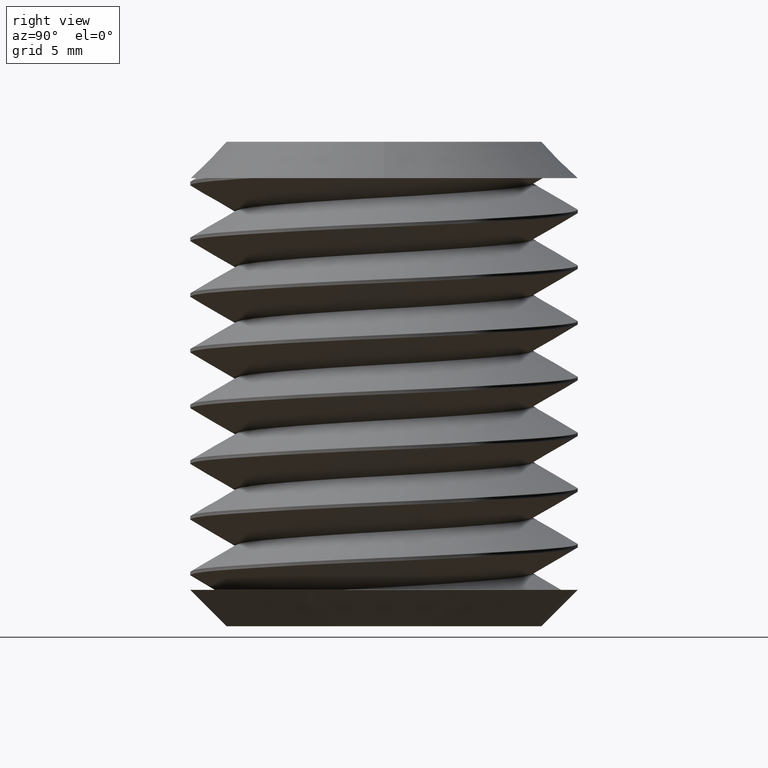
[diagram: clean part render]
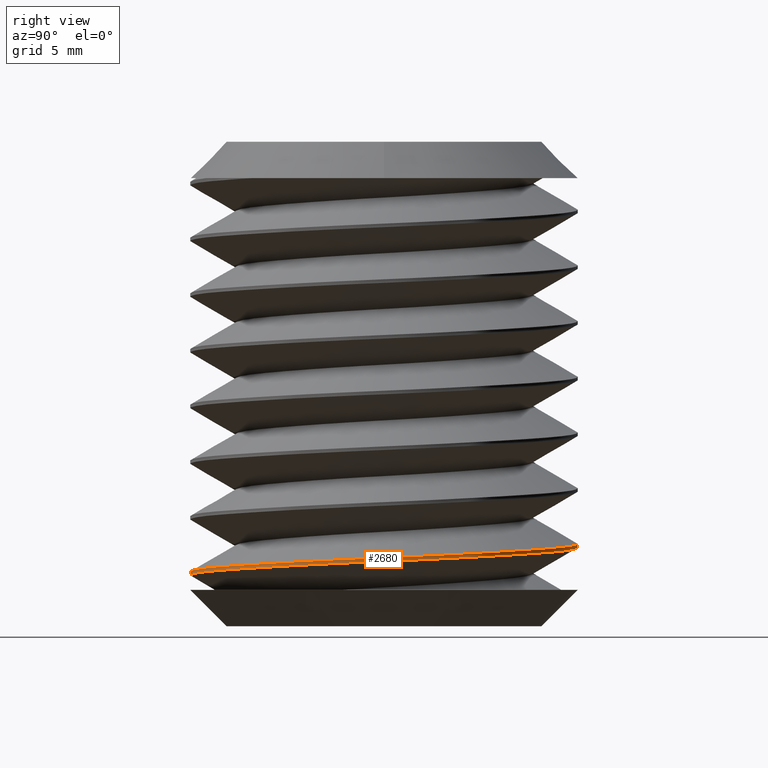
[diagram: same view with one face highlighted and labeled with its STEP entity id]
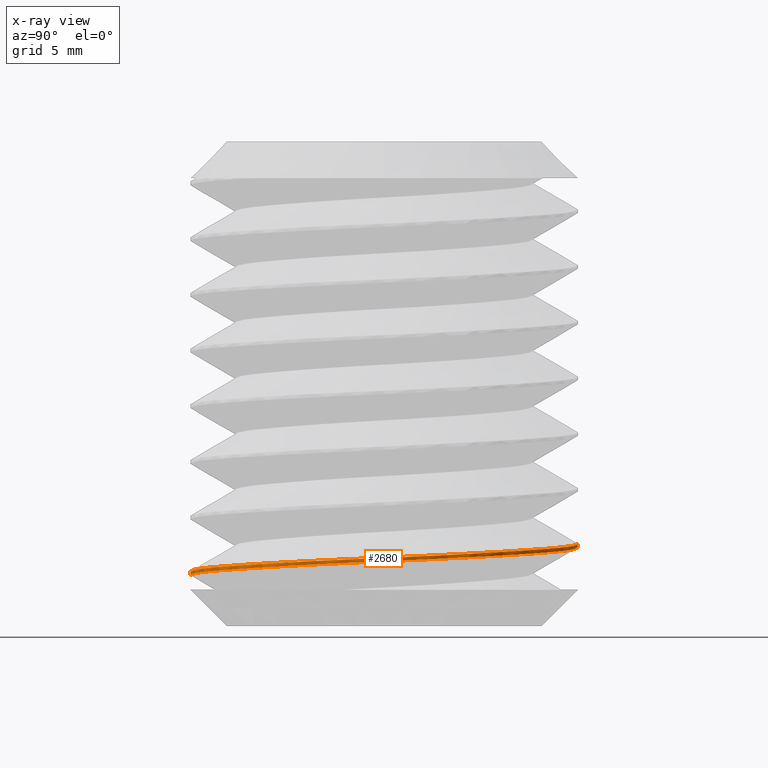
[diagram: x-ray of the same camera — body ghosted, the highlighted face saturated]
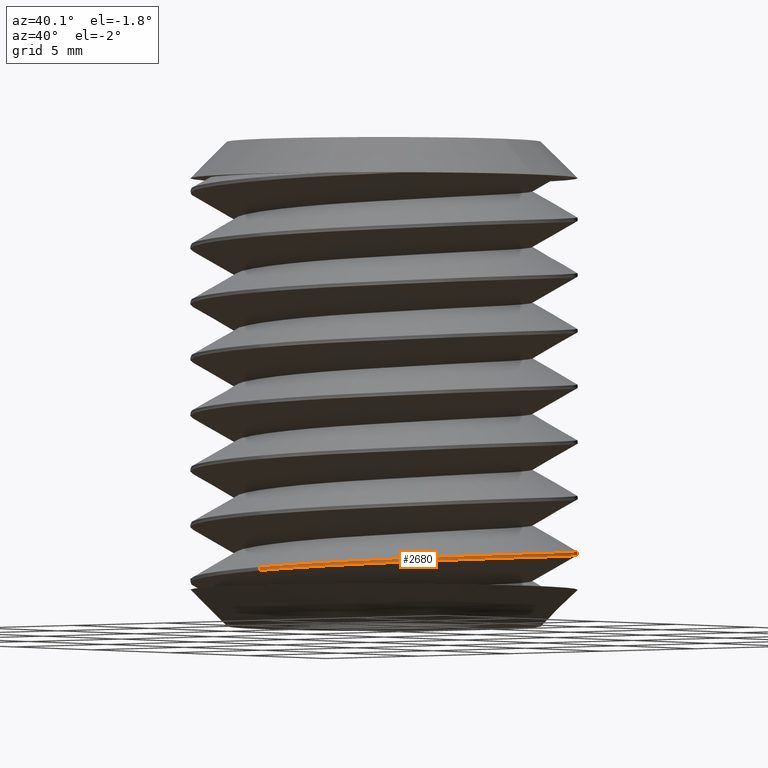
[diagram: same view with one face highlighted and labeled with its STEP entity id]
A machine part, right view. The second image highlights one B-rep face of the part: STEP entity #2680.
The next image is the same camera in x-ray: the body ghosted, the highlighted face saturated — about 0% of this face is hidden behind the body in this view.
A second angle (auxiliary view) of the same face is appended — the face is thin or edge-on in the first view.
In plain terms, the highlighted cylindrical surface (partial cylindrical patch) has radius 8 mm, axis along (0, -0, 1).
Its self-contained STEP definition (entity closure, byte-faithful):
#295 = CARTESIAN_POINT ( 'NONE',  ( 5.275290794601348300, -6.019945547329391500, -17.49280997892573100 ) ) ;
#296 = CARTESIAN_POINT ( 'NONE',  ( 5.471347609031093700, -5.842397323720178700, -17.48074505675932100 ) ) ;
#297 = CARTESIAN_POINT ( 'NONE',  ( 6.029531319406561200, -5.284104148911813700, -17.44420438514223900 ) ) ;
#298 = CARTESIAN_POINT ( 'NONE',  ( 6.359980614583778700, -4.880840585326987800, -17.41955312221965700 ) ) ;
#299 = CARTESIAN_POINT ( 'NONE',  ( 6.794845245070773900, -4.230610789809579900, -17.38215187164854900 ) ) ;
#300 = CARTESIAN_POINT ( 'NONE',  ( 6.929592255609529500, -4.006257374348807700, -17.36961355279825300 ) ) ;
#301 = CARTESIAN_POINT ( 'NONE',  ( 7.178056058276732500, -3.541872132469556800, -17.34439015627039600 ) ) ;
#302 = CARTESIAN_POINT ( 'NONE',  ( 7.290949748655979300, -3.303090583883325300, -17.33177668158152700 ) ) ;
#303 = CARTESIAN_POINT ( 'NONE',  ( 7.591114006585903500, -2.578451223133057600, -17.29451484996088700 ) ) ;
#304 = CARTESIAN_POINT ( 'NONE',  ( 7.742576973383020100, -2.080113070392248800, -17.27020648614303200 ) ) ;
#305 = CARTESIAN_POINT ( 'NONE',  ( 7.896422589939016100, -1.309619190717374900, -17.23454737802104100 ) ) ;
#306 = CARTESIAN_POINT ( 'NONE',  ( 7.935456899591361700, -1.047893127319951900, -17.22275132130720000 ) ) ;
#307 = CARTESIAN_POINT ( 'NONE',  ( 7.987243411170614300, -0.5229712250861698900, -17.19972789203060200 ) ) ;
#308 = CARTESIAN_POINT ( 'NONE',  ( 8.000150963983331900, -0.2595912878573122300, -17.18849639161390300 ) ) ;
#309 = CARTESIAN_POINT ( 'NONE',  ( 7.999694084844327900, 0.5330167745257977700, -17.15559454879980800 ) ) ;
#310 = CARTESIAN_POINT ( 'NONE',  ( 7.947552778615135900, 1.053396490352676700, -17.13275110666895900 ) ) ;
#311 = CARTESIAN_POINT ( 'NONE',  ( 7.742905846500322700, 2.078616940898823500, -17.08530448244416200 ) ) ;
#312 = CARTESIAN_POINT ( 'NONE',  ( 7.587871611042333900, 2.587898346271656700, -17.06045644434453800 ) ) ;
#313 = CARTESIAN_POINT ( 'NONE',  ( 7.186796644346612700, 3.552881566996851900, -17.01080339912448700 ) ) ;
#314 = CARTESIAN_POINT ( 'NONE',  ( 6.941014121738183100, 4.012129252322748300, -16.98585743510726000 ) ) ;
#315 = CARTESIAN_POINT ( 'NONE',  ( 6.503783746079598400, 4.665780912999348800, -16.94825750801382100 ) ) ;
#316 = CARTESIAN_POINT ( 'NONE',  ( 6.345644109854384300, 4.878694722036256900, -16.93563345079713000 ) ) ;
#317 = CARTESIAN_POINT ( 'NONE',  ( 6.012287449644653700, 5.284057246340115200, -16.91082543164543500 ) ) ;
#318 = CARTESIAN_POINT ( 'NONE',  ( 5.836674999571537900, 5.477324925974810900, -16.89859801135460800 ) ) ;
#319 = CARTESIAN_POINT ( 'NONE',  ( 5.283615838386785900, 6.029498922270563300, -16.86243404337227900 ) ) ;
#320 = CARTESIAN_POINT ( 'NONE',  ( 4.880011997122254600, 6.361178059964246700, -16.83900066205964700 ) ) ;
#321 = CARTESIAN_POINT ( 'NONE',  ( 4.001125067249541100, 6.947668788799232300, -16.79360636060161500 ) ) ;
#322 = CARTESIAN_POINT ( 'NONE',  ( 3.540151457441343300, 7.192973889914581400, -16.77235275975515100 ) ) ;
#323 = CARTESIAN_POINT ( 'NONE',  ( 2.817886017264417600, 7.491822530223196900, -16.73774420736823700 ) ) ;
#324 = CARTESIAN_POINT ( 'NONE',  ( 2.571951001900958400, 7.579840751960065700, -16.72595982120330400 ) ) ;
#325 = CARTESIAN_POINT ( 'NONE',  ( 2.069484248157835300, 7.732150588800018400, -16.70188328923519100 ) ) ;
#326 = CARTESIAN_POINT ( 'NONE',  ( 1.812201391697430000, 7.796448187130957700, -16.68955515235735000 ) ) ;
#327 = CARTESIAN_POINT ( 'NONE',  ( 1.041003023519533600, 7.949278305593155700, -16.65260189720839500 ) ) ;
#328 = CARTESIAN_POINT ( 'NONE',  ( 0.5226123003023523900, 8.000000000000000000, -16.62776234172949700 ) ) ;
#329 = CARTESIAN_POINT ( 'NONE',  ( 3.160760730523304000E-014, 8.000000000000000000, -16.60272050236230600 ) ) ;
#376 = CARTESIAN_POINT ( 'NONE',  ( 0.0000000000000000000, -8.000000000000000000, -18.50000000000000400 ) ) ;
#377 = DIRECTION ( 'NONE',  ( 0.0000000000000000000, -2.168404344971008900E-016, 1.000000000000000000 ) ) ;
#572 = CARTESIAN_POINT ( 'NONE',  ( 0.0000000000000000000, 8.000000000000000000, -16.74727949763769500 ) ) ;
#599 = CARTESIAN_POINT ( 'NONE',  ( 6.275039685598678600E-014, -8.000000000000000000, -17.89727949763769700 ) ) ;
#601 = CARTESIAN_POINT ( 'NONE',  ( 0.0000000000000000000, -8.000000000000000000, -17.75272050236230500 ) ) ;
#610 = CARTESIAN_POINT ( 'NONE',  ( 3.160760730523304000E-014, 8.000000000000000000, -16.60272050236230600 ) ) ;
#1522 = LINE ( 'NONE', #376, #1674 ) ;
#1524 = LINE ( 'NONE', #2074, #1525 ) ;
#1525 = VECTOR ( 'NONE', #2075, 1000.000000000000000 ) ;
#1537 = CYLINDRICAL_SURFACE ( 'NONE', #2646, 8.000000000000000000 ) ;
#1606 = EDGE_LOOP ( 'NONE', ( #1652, #1653, #1613, #1612 ) ) ;
#1612 = ORIENTED_EDGE ( 'NONE', *, *, #2753, .F. ) ;
#1613 = ORIENTED_EDGE ( 'NONE', *, *, #2751, .F. ) ;
#1652 = ORIENTED_EDGE ( 'NONE', *, *, #2748, .F. ) ;
#1653 = ORIENTED_EDGE ( 'NONE', *, *, #2749, .T. ) ;
#1674 = VECTOR ( 'NONE', #377, 1000.000000000000000 ) ;
#1684 = FACE_OUTER_BOUND ( 'NONE', #1606, .T. ) ;
#2028 = CARTESIAN_POINT ( 'NONE',  ( 0.0000000000000000000, 8.000000000000000000, -16.74727949763769500 ) ) ;
#2029 = CARTESIAN_POINT ( 'NONE',  ( 0.5226088002379268800, 8.000000000000005300, -16.77232116929347700 ) ) ;
#2030 = CARTESIAN_POINT ( 'NONE',  ( 1.052432807693356900, 7.947612275792697500, -16.79770856961417600 ) ) ;
#2031 = CARTESIAN_POINT ( 'NONE',  ( 2.075669171111284700, 7.743626617621634600, -16.84673864526381600 ) ) ;
#2032 = CARTESIAN_POINT ( 'NONE',  ( 2.574572175440427800, 7.592636507836341600, -16.87064441416025000 ) ) ;
#2033 = CARTESIAN_POINT ( 'NONE',  ( 3.303389996360870400, 7.290867732212216600, -16.90556693463713600 ) ) ;
#2034 = CARTESIAN_POINT ( 'NONE',  ( 3.542794317391507500, 7.177544593919406200, -16.91703839164731300 ) ) ;
#2035 = CARTESIAN_POINT ( 'NONE',  ( 4.004477851403886600, 6.930562394976251800, -16.93916072756992000 ) ) ;
#2036 = CARTESIAN_POINT ( 'NONE',  ( 4.228139451910293700, 6.796372243115753200, -16.94988260208016600 ) ) ;
#2037 = CARTESIAN_POINT ( 'NONE',  ( 4.661260924586763100, 6.506956699157837100, -16.97226936224952400 ) ) ;
#2038 = CARTESIAN_POINT ( 'NONE',  ( 4.870728819698384400, 6.351727176537988100, -16.98372943129667000 ) ) ;
#2039 = CARTESIAN_POINT ( 'NONE',  ( 5.275290794470107500, 6.019945547427366400, -17.00719002106706400 ) ) ;
#2040 = CARTESIAN_POINT ( 'NONE',  ( 5.471347608197417500, 5.842397324530235600, -17.01925494318710400 ) ) ;
#2041 = CARTESIAN_POINT ( 'NONE',  ( 6.029531319989935400, 5.284104148375871700, -17.05579561489399200 ) ) ;
#2042 = CARTESIAN_POINT ( 'NONE',  ( 6.359980615296253200, 4.880840584355271800, -17.08044687783773300 ) ) ;
#2043 = CARTESIAN_POINT ( 'NONE',  ( 6.794845245380252600, 4.230610789300028400, -17.11784812838001800 ) ) ;
#2044 = CARTESIAN_POINT ( 'NONE',  ( 6.929592255683086700, 4.006257374179537800, -17.13038644721053300 ) ) ;
#2045 = CARTESIAN_POINT ( 'NONE',  ( 7.178056057773306800, 3.541872133442266700, -17.15560984367718000 ) ) ;
#2046 = CARTESIAN_POINT ( 'NONE',  ( 7.290949748729248700, 3.303090583753458500, -17.16822331842563200 ) ) ;
#2047 = CARTESIAN_POINT ( 'NONE',  ( 7.591114007071589700, 2.578451221866487200, -17.20548515010331100 ) ) ;
#2048 = CARTESIAN_POINT ( 'NONE',  ( 7.742576973670128200, 2.080113069101110500, -17.22979351391743200 ) ) ;
#2049 = CARTESIAN_POINT ( 'NONE',  ( 7.896422589924348800, 1.309619190717469500, -17.26545262197860700 ) ) ;
#2050 = CARTESIAN_POINT ( 'NONE',  ( 7.935456899516765400, 1.047893127963440900, -17.27724867866430700 ) ) ;
#2051 = CARTESIAN_POINT ( 'NONE',  ( 7.987243411179344200, 0.5229712251103518800, -17.30027210796861700 ) ) ;
#2052 = CARTESIAN_POINT ( 'NONE',  ( 8.000150964002084900, 0.2595912866011606000, -17.31150360843777800 ) ) ;
#2053 = CARTESIAN_POINT ( 'NONE',  ( 7.999694084805797800, -0.5330167737830892000, -17.34440545117030700 ) ) ;
#2054 = CARTESIAN_POINT ( 'NONE',  ( 7.947552778794482200, -1.053396489208769300, -17.36724889327928500 ) ) ;
#2055 = CARTESIAN_POINT ( 'NONE',  ( 7.742905846608845600, -2.078616940600601200, -17.41469551754086400 ) ) ;
#2056 = CARTESIAN_POINT ( 'NONE',  ( 7.587871611002478600, -2.587898346253431300, -17.43954355565566800 ) ) ;
#2057 = CARTESIAN_POINT ( 'NONE',  ( 7.186796644901227700, -3.552881565776577800, -17.48919660081158500 ) ) ;
#2058 = CARTESIAN_POINT ( 'NONE',  ( 6.941014122378368800, -4.012129251352708300, -17.51414256483715100 ) ) ;
#2059 = CARTESIAN_POINT ( 'NONE',  ( 6.503783745851336600, -4.665780913347084900, -17.55174249200608800 ) ) ;
#2060 = CARTESIAN_POINT ( 'NONE',  ( 6.345644109466017600, -4.878694722512828500, -17.56436654923194900 ) ) ;
#2061 = CARTESIAN_POINT ( 'NONE',  ( 6.012287449926736500, -5.284057245992775300, -17.58917456833339100 ) ) ;
#2062 = CARTESIAN_POINT ( 'NONE',  ( 5.836675000085202600, -5.477324925422943900, -17.60140198861017400 ) ) ;
#2063 = CARTESIAN_POINT ( 'NONE',  ( 5.283615839160417800, -6.029498921576244900, -17.63756595658037100 ) ) ;
#2064 = CARTESIAN_POINT ( 'NONE',  ( 4.880011995009041900, -6.361178061462732500, -17.66099933805316600 ) ) ;
#2065 = CARTESIAN_POINT ( 'NONE',  ( 4.001125067512122200, -6.947668788535688500, -17.70639363938116500 ) ) ;
#2066 = CARTESIAN_POINT ( 'NONE',  ( 3.540151458265498700, -7.192973889529544500, -17.72764724020535700 ) ) ;
#2067 = CARTESIAN_POINT ( 'NONE',  ( 2.817886017718107100, -7.491822530057494800, -17.76225579261002700 ) ) ;
#2068 = CARTESIAN_POINT ( 'NONE',  ( 2.571951002028587800, -7.579840751936860200, -17.77404017879059200 ) ) ;
#2069 = CARTESIAN_POINT ( 'NONE',  ( 2.069484247165748400, -7.732150589085249800, -17.79811671081234100 ) ) ;
#2070 = CARTESIAN_POINT ( 'NONE',  ( 1.812201390956367700, -7.796448187287093200, -17.81044484767815900 ) ) ;
#2071 = CARTESIAN_POINT ( 'NONE',  ( 1.041003024184276300, -7.949278305442875100, -17.84739810275975500 ) ) ;
#2072 = CARTESIAN_POINT ( 'NONE',  ( 0.5226123010694052600, -8.000000000000003600, -17.87223765823374700 ) ) ;
#2073 = CARTESIAN_POINT ( 'NONE',  ( 6.275039685598678600E-014, -8.000000000000000000, -17.89727949763769700 ) ) ;
#2074 = CARTESIAN_POINT ( 'NONE',  ( 9.797174393178825700E-016, 8.000000000000000000, -18.49999999999999600 ) ) ;
#2075 = DIRECTION ( 'NONE',  ( 0.0000000000000000000, -2.168404344971008900E-016, 1.000000000000000000 ) ) ;
#2078 = CARTESIAN_POINT ( 'NONE',  ( 0.0000000000000000000, -8.000000000000000000, -17.75272050236230500 ) ) ;
#2079 = CARTESIAN_POINT ( 'NONE',  ( 0.5226088009229176200, -7.999999999999998200, -17.72767883067369600 ) ) ;
#2080 = CARTESIAN_POINT ( 'NONE',  ( 1.052432807873215000, -7.947612275734094600, -17.70229143037720500 ) ) ;
#2081 = CARTESIAN_POINT ( 'NONE',  ( 2.075669170260451500, -7.743626617813997200, -17.65326135477695100 ) ) ;
#2082 = CARTESIAN_POINT ( 'NONE',  ( 2.574572174921896800, -7.592636508093767700, -17.62935558586458700 ) ) ;
#2083 = CARTESIAN_POINT ( 'NONE',  ( 3.303389997452419500, -7.290867731738893000, -17.59443306531055400 ) ) ;
#2084 = CARTESIAN_POINT ( 'NONE',  ( 3.542794317756220700, -7.177544593722776000, -17.58296160833521400 ) ) ;
#2085 = CARTESIAN_POINT ( 'NONE',  ( 4.004477850966755300, -6.930562395211622700, -17.56083927245102700 ) ) ;
#2086 = CARTESIAN_POINT ( 'NONE',  ( 4.228139451285600500, -6.796372243503197900, -17.55011739795088100 ) ) ;
#2087 = CARTESIAN_POINT ( 'NONE',  ( 4.661260923938415100, -6.506956699621042600, -17.52773063778522600 ) ) ;
#2088 = CARTESIAN_POINT ( 'NONE',  ( 4.870728819214192200, -6.351727176925424900, -17.51627056873101700 ) ) ;
#2109 = B_SPLINE_CURVE_WITH_KNOTS ( 'NONE', 3,
 ( #2078, #2079, #2080, #2081, #2082, #2083, #2084, #2085, #2086, #2087, #2088, #295, #296, #297, #298, #299, #300, #301, #302, #303, #304, #305, #306, #307, #308, #309, #310, #311, #312, #313, #314, #315, #316, #317, #318, #319, #320, #321, #322, #323, #324, #325, #326, #327, #328, #329 ),
 .UNSPECIFIED., .F., .F.,
 ( 4, 2, 2, 2, 2, 2, 2, 2, 2, 2, 2, 2, 2, 2, 2, 2, 2, 2, 2, 2, 2, 2, 4 ),
 ( 0.01631663873644190500, 0.01788489356522336700, 0.01945314839400482900, 0.02023727580839555800, 0.02102140322278629000, 0.02180553063717702000, 0.02258965805156775200, 0.02415791288034921400, 0.02494204029473994600, 0.02572616770913067900, 0.02729442253791214100, 0.02807854995230287000, 0.02886267736669360200, 0.03043093219547507100, 0.03199918702425653300, 0.03356744185303799800, 0.03435156926742873000, 0.03513569668181945600, 0.03670395151060092100, 0.03827220633938238600, 0.03905633375377312600, 0.03984046116816385200, 0.04140871599694531000 ),
 .UNSPECIFIED. ) ;
#2110 = B_SPLINE_CURVE_WITH_KNOTS ( 'NONE', 3,
 ( #2028, #2029, #2030, #2031, #2032, #2033, #2034, #2035, #2036, #2037, #2038, #2039, #2040, #2041, #2042, #2043, #2044, #2045, #2046, #2047, #2048, #2049, #2050, #2051, #2052, #2053, #2054, #2055, #2056, #2057, #2058, #2059, #2060, #2061, #2062, #2063, #2064, #2065, #2066, #2067, #2068, #2069, #2070, #2071, #2072, #2073 ),
 .UNSPECIFIED., .F., .F.,
 ( 4, 2, 2, 2, 2, 2, 2, 2, 2, 2, 2, 2, 2, 2, 2, 2, 2, 2, 2, 2, 2, 2, 4 ),
 ( -0.03804518115373645800, -0.03645976958225746100, -0.03487435801077846300, -0.03408165222503896400, -0.03328894643929945800, -0.03249624065355995900, -0.03170353486782046000, -0.03011812329634146500, -0.02932541751060196300, -0.02853271172486246400, -0.02694730015338347000, -0.02615459436764397400, -0.02536188858190447500, -0.02377647701042547700, -0.02219106543894648300, -0.02060565386746748500, -0.01981294808172798900, -0.01902024229598849400, -0.01743483072450949600, -0.01584941915303050500, -0.01505671336729100900, -0.01426400758155151000, -0.01267859601007252000 ),
 .UNSPECIFIED. ) ;
#2349 = CARTESIAN_POINT ( 'NONE',  ( 0.0000000000000000000, 0.0000000000000000000, -18.50000000000000000 ) ) ;
#2350 = DIRECTION ( 'NONE',  ( 0.0000000000000000000, -2.168404344971008900E-016, 1.000000000000000000 ) ) ;
#2351 = DIRECTION ( 'NONE',  ( 0.0000000000000000000, -1.000000000000000000, -4.336808689942017700E-016 ) ) ;
#2646 = AXIS2_PLACEMENT_3D ( 'NONE', #2349, #2350, #2351 ) ;
#2680 = ADVANCED_FACE ( 'NONE', ( #1684 ), #1537, .T. ) ;
#2748 = EDGE_CURVE ( 'NONE', #2763, #2805, #2110, .T. ) ;
#2749 = EDGE_CURVE ( 'NONE', #2763, #2816, #1524, .T. ) ;
#2751 = EDGE_CURVE ( 'NONE', #2807, #2816, #2109, .T. ) ;
#2753 = EDGE_CURVE ( 'NONE', #2805, #2807, #1522, .T. ) ;
#2763 = VERTEX_POINT ( 'NONE', #572 ) ;
#2805 = VERTEX_POINT ( 'NONE', #599 ) ;
#2807 = VERTEX_POINT ( 'NONE', #601 ) ;
#2816 = VERTEX_POINT ( 'NONE', #610 ) ;